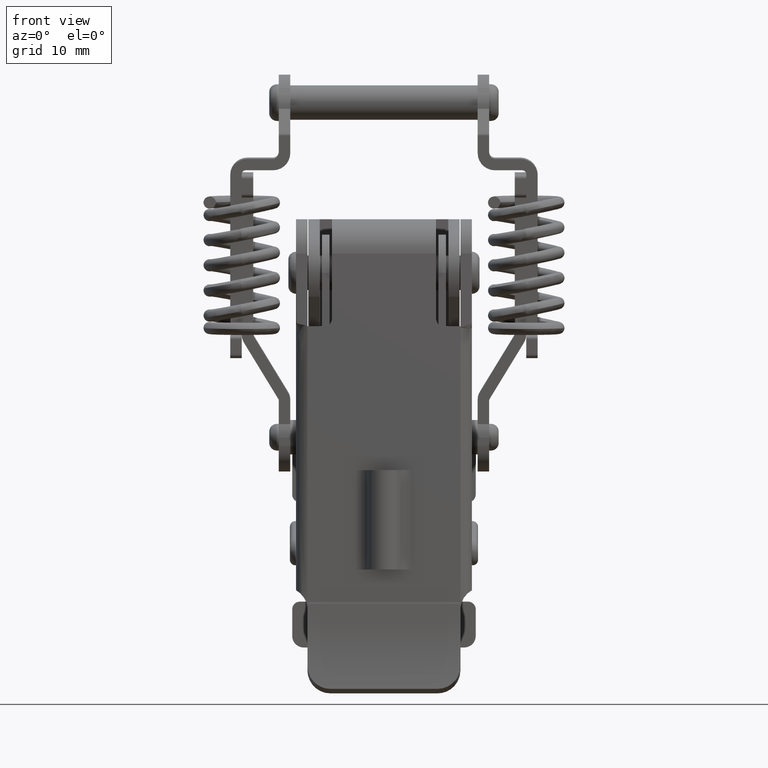
[diagram: clean part render]
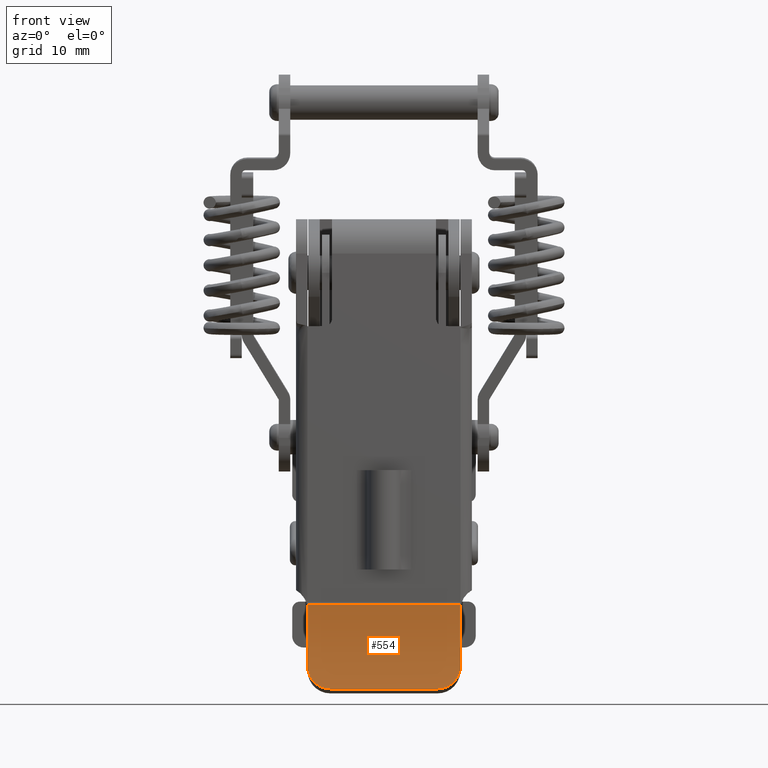
[diagram: same view with one face highlighted and labeled with its STEP entity id]
A machine part, front view. The second image highlights one B-rep face of the part: STEP entity #554.
In plain terms, the highlighted cylindrical surface (partial cylindrical patch) has radius 50 mm, axis along (1, 0, 0).
Its self-contained STEP definition (entity closure, byte-faithful):
#554=ADVANCED_FACE('',(#3565),#3564,.F.);
#3564=CYLINDRICAL_SURFACE('',#6544,5.00000000000E+01);
#3565=FACE_OUTER_BOUND('',#6545,.T.);
#6541=CARTESIAN_POINT('',(9.90000000000E+02,-5.00340913539E+01,-2.21774590758E+01));
#6542=DIRECTION('',(1.00000000000E+00,-0.00000000000E+00,-0.00000000000E+00));
#6543=DIRECTION('',(-0.00000000000E+00,-0.00000000000E+00,-1.00000000000E+00));
#6544=AXIS2_PLACEMENT_3D('',#6541,#6542,#6543);
#6545=EDGE_LOOP('',(#11296,#11297,#11298,#11299,#11300,#11301));
#11296=ORIENTED_EDGE('',*,*,#12703,.F.);
#11297=ORIENTED_EDGE('',*,*,#12738,.T.);
#11298=ORIENTED_EDGE('',*,*,#12730,.T.);
#11299=ORIENTED_EDGE('',*,*,#12739,.T.);
#11300=ORIENTED_EDGE('',*,*,#12740,.F.);
#11301=ORIENTED_EDGE('',*,*,#12741,.T.);
#12703=EDGE_CURVE('',#18329,#18336,#18337,.T.);
#12730=EDGE_CURVE('',#18507,#18508,#18509,.T.);
#12738=EDGE_CURVE('',#18329,#18507,#18560,.T.);
#12739=EDGE_CURVE('',#18508,#18566,#18567,.T.);
#12740=EDGE_CURVE('',#18573,#18566,#18574,.T.);
#12741=EDGE_CURVE('',#18573,#18336,#18580,.T.);
#18329=VERTEX_POINT('',#23612);
#18336=VERTEX_POINT('',#23617);
#18337=CIRCLE('',#23621,5.00000000000E+01);
#18507=VERTEX_POINT('',#23739);
#18508=VERTEX_POINT('',#23740);
#18509=CIRCLE('',#23744,5.00000000000E+01);
#18560=LINE('',#23797,#23798);
#18566=VERTEX_POINT('',#23800);
#18567=(BOUNDED_CURVE() B_SPLINE_CURVE(3,(#23801,#23802,#23803,#23804,#23805,#23806,#23807,#23808,#23809,#23810,#23811,#23812,#23813,#23814,#23815,#23816),.UNSPECIFIED.,.F.,.F.) B_SPLINE_CURVE_WITH_KNOTS((4,2,2,2,2,2,2,4),(0.00000000000E+00,5.93239325276E-04,1.18647865055E-03,1.77971797583E-03,2.37295730110E-03,2.96619662638E-03,3.55943595165E-03,4.74591460221E-03),.UNSPECIFIED.) CURVE() GEOMETRIC_REPRESENTATION_ITEM() RATIONAL_B_SPLINE_CURVE((1.00000000000E+00,1.00000000000E+00,1.00000000000E+00,1.00000000000E+00,1.00000000000E+00,1.00000000000E+00,1.00000000000E+00,1.00000000000E+00,1.00000000000E+00,1.00000000000E+00,1.00000000000E+00,1.00000000000E+00,1.00000000000E+00,1.00000000000E+00,1.00000000000E+00,1.00000000000E+00)) REPRESENTATION_ITEM('') );
#18573=VERTEX_POINT('',#23817);
#18574=LINE('',#23818,#23819);
#18580=(BOUNDED_CURVE() B_SPLINE_CURVE(3,(#23821,#23822,#23823,#23824,#23825,#23826,#23827,#23828,#23829,#23830,#23831,#23832,#23833,#23834,#23835,#23836),.UNSPECIFIED.,.F.,.F.) B_SPLINE_CURVE_WITH_KNOTS((4,2,2,2,2,2,2,4),(0.00000000000E+00,5.93230740748E-04,1.18646148150E-03,1.77969222224E-03,2.37292296299E-03,3.55938444449E-03,4.15261518523E-03,4.74584592598E-03),.UNSPECIFIED.) CURVE() GEOMETRIC_REPRESENTATION_ITEM() RATIONAL_B_SPLINE_CURVE((1.00000000000E+00,1.00000000000E+00,1.00000000000E+00,1.00000000000E+00,1.00000000000E+00,1.00000000000E+00,1.00000000000E+00,1.00000000000E+00,1.00000000000E+00,1.00000000000E+00,1.00000000000E+00,1.00000000000E+00,1.00000000000E+00,1.00000000000E+00,1.00000000000E+00,1.00000000000E+00)) REPRESENTATION_ITEM('') );
#23612=CARTESIAN_POINT('',(1.00000000000E+01,-3.47780468360E-02,-2.19154117126E+01));
#23617=CARTESIAN_POINT('',(1.00000000000E+01,-6.32929813170E-01,-2.98927191768E+01));
#23618=CARTESIAN_POINT('',(1.00000000000E+01,-5.00340913539E+01,-2.21774590758E+01));
#23619=DIRECTION('',(-1.00000000000E+00,0.00000000000E+00,0.00000000000E+00));
#23620=DIRECTION('',(-0.00000000000E+00,-0.00000000000E+00,-1.00000000000E+00));
#23621=AXIS2_PLACEMENT_3D('',#23618,#23619,#23620);
#23739=CARTESIAN_POINT('',(-1.00000000000E+01,-3.47780468360E-02,-2.19154117126E+01));
#23740=CARTESIAN_POINT('',(-1.00000000000E+01,-6.32929813170E-01,-2.98927191768E+01));
#23741=CARTESIAN_POINT('',(-1.00000000000E+01,-5.00340913539E+01,-2.21774590758E+01));
#23742=DIRECTION('',(-1.00000000000E+00,0.00000000000E+00,0.00000000000E+00));
#23743=DIRECTION('',(-0.00000000000E+00,-0.00000000000E+00,-1.00000000000E+00));
#23744=AXIS2_PLACEMENT_3D('',#23741,#23742,#23743);
#23797=CARTESIAN_POINT('',(1.00000000000E+01,-3.47780468360E-02,-2.19154117126E+01));
#23798=VECTOR('',#23799,2.00000000000E+01);
#23799=DIRECTION('',(-1.00000000000E+00,0.00000000000E+00,0.00000000000E+00));
#23800=CARTESIAN_POINT('',(-7.00000000000E+00,-1.20000000000E+00,-3.29120536950E+01));
#23801=CARTESIAN_POINT('',(-1.00000000000E+01,-6.32929813170E-01,-2.98927191768E+01));
#23802=CARTESIAN_POINT('',(-1.00000000000E+01,-6.63873894623E-01,-3.00908555386E+01));
#23803=CARTESIAN_POINT('',(-9.98127856503E+00,-6.95521163999E-01,-3.02856802869E+01));
#23804=CARTESIAN_POINT('',(-9.90748885658E+00,-7.60033615906E-01,-3.06689250049E+01));
#23805=CARTESIAN_POINT('',(-9.85163834944E+00,-7.93228672601E-01,-3.08591486686E+01));
#23806=CARTESIAN_POINT('',(-9.70445239846E+00,-8.58885771845E-01,-3.12236432297E+01));
#23807=CARTESIAN_POINT('',(-9.61412156741E+00,-8.91078901197E-01,-3.13965751701E+01));
#23808=CARTESIAN_POINT('',(-9.40007811563E+00,-9.53627276799E-01,-3.17239673622E+01));
#23809=CARTESIAN_POINT('',(-9.27474515200E+00,-9.84255713970E-01,-3.18797270057E+01));
#23810=CARTESIAN_POINT('',(-8.99931525200E+00,-1.04045723264E+00,-3.21596529669E+01));
#23811=CARTESIAN_POINT('',(-8.84879500200E+00,-1.06627787680E+00,-3.22851824438E+01));
#23812=CARTESIAN_POINT('',(-8.52162130602E+00,-1.11257325603E+00,-3.25069264102E+01));
#23813=CARTESIAN_POINT('',(-8.34513377476E+00,-1.13288895580E+00,-3.26023559513E+01));
#23814=CARTESIAN_POINT('',(-7.79961450039E+00,-1.18198082182E+00,-3.28308895063E+01));
#23815=CARTESIAN_POINT('',(-7.40138050727E+00,-1.20000000000E+00,-3.29120536950E+01));
#23816=CARTESIAN_POINT('',(-7.00000000000E+00,-1.20000000000E+00,-3.29120536950E+01));
#23817=CARTESIAN_POINT('',(7.00000000000E+00,-1.20000000000E+00,-3.29120536950E+01));
#23818=CARTESIAN_POINT('',(7.00000000000E+00,-1.20000000000E+00,-3.29120536950E+01));
#23819=VECTOR('',#23820,1.40000000000E+01);
#23820=DIRECTION('',(-1.00000000000E+00,0.00000000000E+00,0.00000000000E+00));
#23821=CARTESIAN_POINT('',(7.00000000000E+00,-1.20000000000E+00,-3.29120536950E+01));
#23822=CARTESIAN_POINT('',(7.20060611907E+00,-1.20000000000E+00,-3.29120536950E+01));
#23823=CARTESIAN_POINT('',(7.39775117940E+00,-1.19563732064E+00,-3.28922611006E+01));
#23824=CARTESIAN_POINT('',(7.78541006207E+00,-1.17869077222E+00,-3.28147241751E+01));
#23825=CARTESIAN_POINT('',(7.97801067947E+00,-1.16588693790E+00,-3.27559609766E+01));
#23826=CARTESIAN_POINT('',(8.34363601875E+00,-1.13306302581E+00,-3.26031740999E+01));
#23827=CARTESIAN_POINT('',(8.51680183752E+00,-1.11316474528E+00,-3.25097223431E+01));
#23828=CARTESIAN_POINT('',(8.84401115243E+00,-1.06704264769E+00,-3.22888816005E+01));
#23829=CARTESIAN_POINT('',(8.99786190701E+00,-1.04071465612E+00,-3.21609105594E+01));
#23830=CARTESIAN_POINT('',(9.41047546500E+00,-9.56637491817E-01,-3.17422161309E+01));
#23831=CARTESIAN_POINT('',(9.63056013808E+00,-8.91697258065E-01,-3.14056890835E+01));
#23832=CARTESIAN_POINT('',(9.85025760634E+00,-7.93919097996E-01,-3.08630343501E+01));
#23833=CARTESIAN_POINT('',(9.90652383908E+00,-7.60742518040E-01,-3.06730767473E+01));
#23834=CARTESIAN_POINT('',(9.98128954839E+00,-6.95644636853E-01,-3.02864726206E+01));
#23835=CARTESIAN_POINT('',(1.00000000000E+01,-6.63864162228E-01,-3.00907932216E+01));
#23836=CARTESIAN_POINT('',(1.00000000000E+01,-6.32929813170E-01,-2.98927191768E+01));